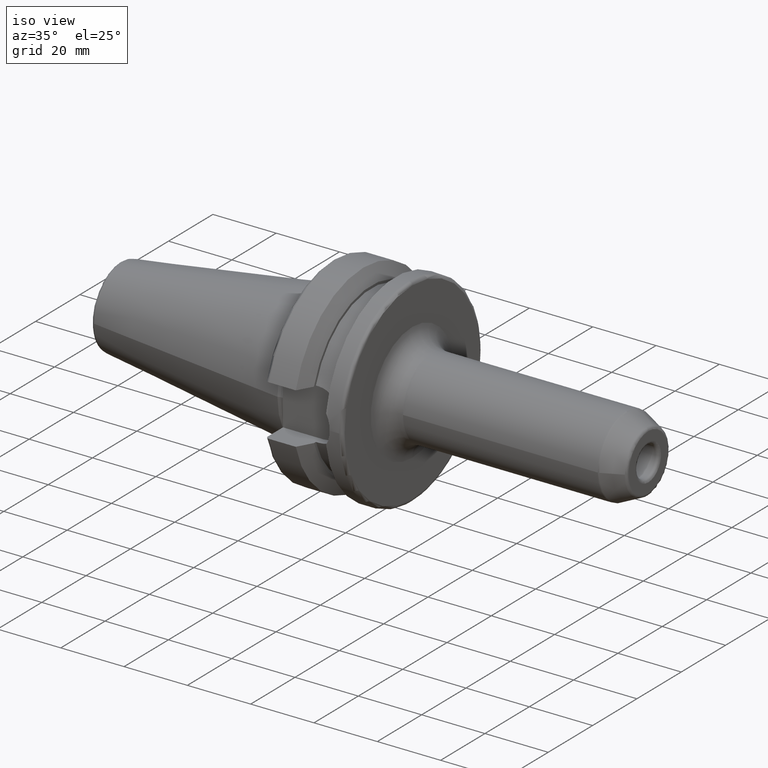
[diagram: clean part render]
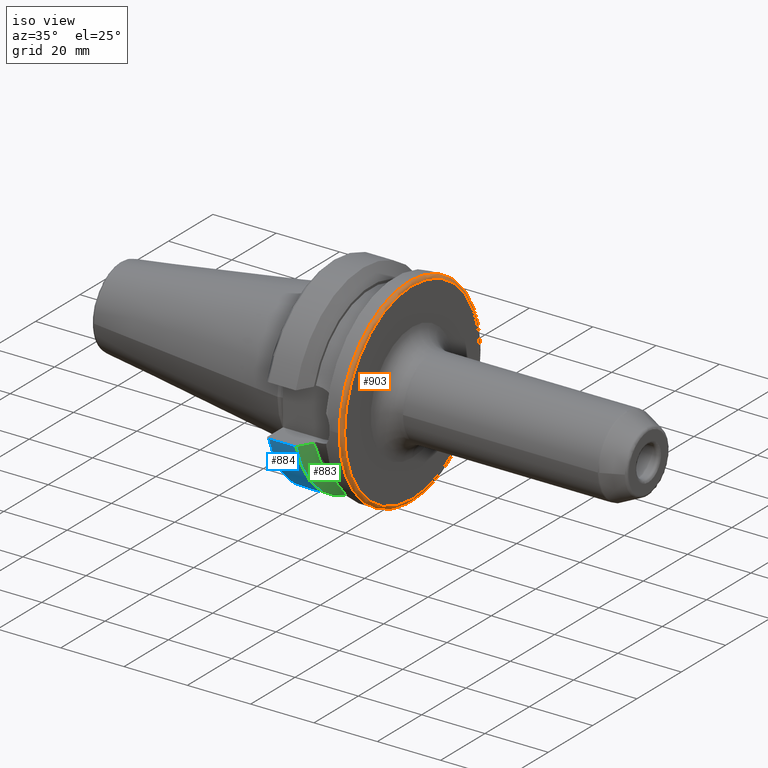
[diagram: same view with three faces highlighted in distinct colors, each labeled with its STEP entity id]
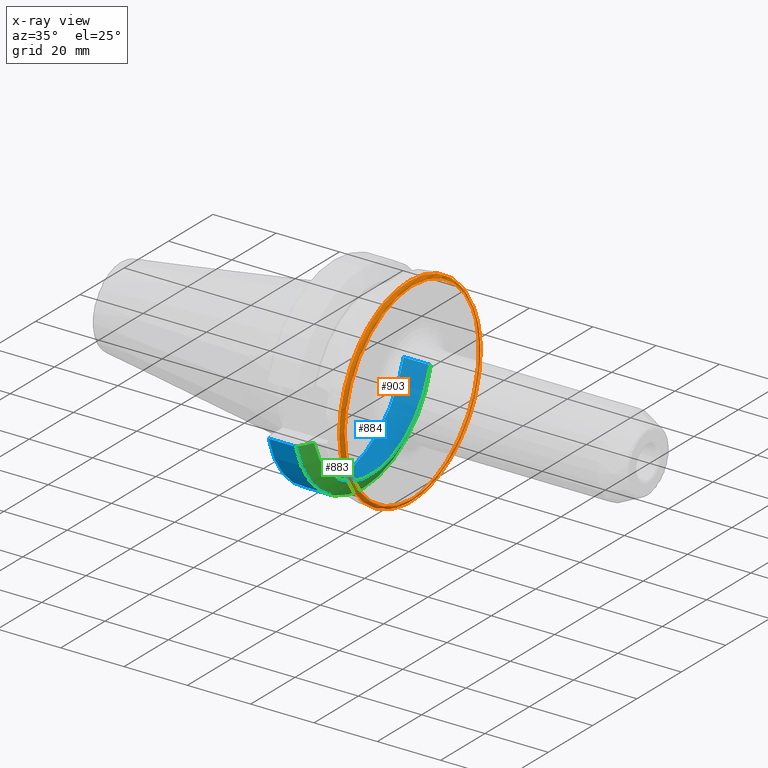
[diagram: x-ray of the same camera — body ghosted, the three highlighted faces saturated]
A machine part, iso view with three faces highlighted in distinct colors.
The next image is the same camera in x-ray (body ghosted, the three faces saturated) — at least one of them is partly hidden behind the body in this view.
Their STEP definitions:

[orange] entity #903 — the highlighted toroidal blend (fillet) surface has major radius 30.5 mm and minor (blend) radius 1 mm.
#225=FACE_OUTER_BOUND('',#282,.T.);
#282=EDGE_LOOP('',(#821,#822,#823,#824,#825));
#310=CIRCLE('',#961,30.5);
#318=CIRCLE('',#981,31.5);
#321=CIRCLE('',#984,31.5);
#347=CIRCLE('',#1035,1.00000000000001);
#377=VERTEX_POINT('',#1478);
#405=VERTEX_POINT('',#1608);
#406=VERTEX_POINT('',#1609);
#472=EDGE_CURVE('',#377,#377,#310,.T.);
#510=EDGE_CURVE('',#405,#406,#318,.T.);
#515=EDGE_CURVE('',#406,#405,#321,.T.);
#567=EDGE_CURVE('',#377,#406,#347,.T.);
#821=ORIENTED_EDGE('',*,*,#472,.F.);
#822=ORIENTED_EDGE('',*,*,#567,.T.);
#823=ORIENTED_EDGE('',*,*,#515,.T.);
#824=ORIENTED_EDGE('',*,*,#510,.T.);
#825=ORIENTED_EDGE('',*,*,#567,.F.);
#856=TOROIDAL_SURFACE('',#1034,30.5,1.00000000000001);
#903=ADVANCED_FACE('',(#225),#856,.T.);
#961=AXIS2_PLACEMENT_3D('',#1479,#1110,#1111);
#981=AXIS2_PLACEMENT_3D('',#1610,#1170,#1171);
#984=AXIS2_PLACEMENT_3D('',#1626,#1177,#1178);
#1034=AXIS2_PLACEMENT_3D('',#1772,#1295,#1296);
#1035=AXIS2_PLACEMENT_3D('',#1773,#1297,#1298);
#1110=DIRECTION('center_axis',(1.,0.,0.));
#1111=DIRECTION('ref_axis',(0.,0.,-1.));
#1170=DIRECTION('center_axis',(1.,0.,0.));
#1171=DIRECTION('ref_axis',(0.,0.,-1.));
#1177=DIRECTION('center_axis',(1.,0.,0.));
#1178=DIRECTION('ref_axis',(0.,0.,-1.));
#1295=DIRECTION('center_axis',(1.,0.,0.));
#1296=DIRECTION('ref_axis',(0.,0.,-1.));
#1297=DIRECTION('center_axis',(0.,-1.,-1.22464679914735E-16));
#1298=DIRECTION('ref_axis',(0.,-1.22464679914735E-16,1.));
#1478=CARTESIAN_POINT('',(27.,-3.73517273739943E-15,30.5));
#1479=CARTESIAN_POINT('Origin',(27.,0.,0.));
#1608=CARTESIAN_POINT('',(26.,-31.5,-3.85763741731416E-15));
#1609=CARTESIAN_POINT('',(26.,-3.85763741731416E-15,31.5));
#1610=CARTESIAN_POINT('Origin',(26.,0.,0.));
#1626=CARTESIAN_POINT('Origin',(26.,0.,0.));
#1772=CARTESIAN_POINT('Origin',(26.,0.,0.));
#1773=CARTESIAN_POINT('Origin',(26.,-3.73517273739943E-15,30.5));

[blue] entity #884 — the highlighted cylindrical surface (partial cylindrical patch) has radius 31.5 mm, axis along (1, 0, 0).
#73=LINE('',#1599,#118);
#80=LINE('',#1664,#125);
#118=VECTOR('',#1163,10.);
#125=VECTOR('',#1206,10.);
#151=CYLINDRICAL_SURFACE('',#995,31.5);
#206=FACE_OUTER_BOUND('',#262,.T.);
#262=EDGE_LOOP('',(#720,#721,#722,#723));
#326=CIRCLE('',#994,31.5000000000001);
#327=CIRCLE('',#996,31.5);
#402=VERTEX_POINT('',#1587);
#403=VERTEX_POINT('',#1598);
#414=VERTEX_POINT('',#1656);
#415=VERTEX_POINT('',#1662);
#506=EDGE_CURVE('',#403,#402,#73,.T.);
#525=EDGE_CURVE('',#403,#414,#326,.T.);
#527=EDGE_CURVE('',#402,#415,#327,.T.);
#528=EDGE_CURVE('',#415,#414,#80,.T.);
#720=ORIENTED_EDGE('',*,*,#506,.T.);
#721=ORIENTED_EDGE('',*,*,#527,.T.);
#722=ORIENTED_EDGE('',*,*,#528,.T.);
#723=ORIENTED_EDGE('',*,*,#525,.F.);
#884=ADVANCED_FACE('',(#206),#151,.T.);
#994=AXIS2_PLACEMENT_3D('',#1657,#1200,#1201);
#995=AXIS2_PLACEMENT_3D('',#1661,#1202,#1203);
#996=AXIS2_PLACEMENT_3D('',#1663,#1204,#1205);
#1163=DIRECTION('',(-1.,0.,0.));
#1200=DIRECTION('center_axis',(1.,0.,0.));
#1201=DIRECTION('ref_axis',(0.,0.,-1.));
#1202=DIRECTION('center_axis',(1.,0.,0.));
#1203=DIRECTION('ref_axis',(0.,1.,0.));
#1204=DIRECTION('center_axis',(1.,0.,0.));
#1205=DIRECTION('ref_axis',(0.,0.,-1.));
#1206=DIRECTION('',(1.,0.,0.));
#1587=CARTESIAN_POINT('',(2.99999999999999,-30.4540227227866,-8.05));
#1598=CARTESIAN_POINT('',(11.5690363073382,-30.4540227227866,-8.05));
#1599=CARTESIAN_POINT('',(7.28451815366907,-30.4540227227866,-8.05));
#1656=CARTESIAN_POINT('',(11.5690363073382,30.4540227227866,-8.05));
#1657=CARTESIAN_POINT('Origin',(11.5690363073382,0.,0.));
#1661=CARTESIAN_POINT('Origin',(7.28451815366907,0.,0.));
#1662=CARTESIAN_POINT('',(2.99999999999999,30.4540227227866,-8.05));
#1663=CARTESIAN_POINT('Origin',(2.99999999999999,0.,0.));
#1664=CARTESIAN_POINT('',(7.28451815366907,30.4540227227866,-8.05));

[green] entity #883 — the highlighted conical surface has half-angle 60.125 deg.
#16=(
BOUNDED_CURVE()
B_SPLINE_CURVE(2,(#1601,#1602,#1603),.UNSPECIFIED.,.F.,.F.)
B_SPLINE_CURVE_WITH_KNOTS((3,3),(0.,0.52358279083281),.UNSPECIFIED.)
CURVE()
GEOMETRIC_REPRESENTATION_ITEM()
RATIONAL_B_SPLINE_CURVE((1.,1.00307360097546,1.))
REPRESENTATION_ITEM('')
);
#17=(
BOUNDED_CURVE()
B_SPLINE_CURVE(2,(#1658,#1659,#1660),.UNSPECIFIED.,.F.,.F.)
B_SPLINE_CURVE_WITH_KNOTS((3,3),(0.,0.52358279083281),.UNSPECIFIED.)
CURVE()
GEOMETRIC_REPRESENTATION_ITEM()
RATIONAL_B_SPLINE_CURVE((1.,1.00307360097546,1.))
REPRESENTATION_ITEM('')
);
#25=CONICAL_SURFACE('',#993,29.2970358274569,1.0493792127616);
#205=FACE_OUTER_BOUND('',#261,.T.);
#261=EDGE_LOOP('',(#716,#717,#718,#719));
#325=CIRCLE('',#992,27.0940716549138);
#326=CIRCLE('',#994,31.5000000000001);
#403=VERTEX_POINT('',#1598);
#404=VERTEX_POINT('',#1600);
#413=VERTEX_POINT('',#1652);
#414=VERTEX_POINT('',#1656);
#507=EDGE_CURVE('',#404,#403,#16,.T.);
#523=EDGE_CURVE('',#404,#413,#325,.T.);
#525=EDGE_CURVE('',#403,#414,#326,.T.);
#526=EDGE_CURVE('',#414,#413,#17,.T.);
#716=ORIENTED_EDGE('',*,*,#507,.T.);
#717=ORIENTED_EDGE('',*,*,#525,.T.);
#718=ORIENTED_EDGE('',*,*,#526,.T.);
#719=ORIENTED_EDGE('',*,*,#523,.F.);
#883=ADVANCED_FACE('',(#205),#25,.T.);
#992=AXIS2_PLACEMENT_3D('',#1653,#1195,#1196);
#993=AXIS2_PLACEMENT_3D('',#1655,#1198,#1199);
#994=AXIS2_PLACEMENT_3D('',#1657,#1200,#1201);
#1195=DIRECTION('center_axis',(1.,0.,0.));
#1196=DIRECTION('ref_axis',(0.,0.,-1.));
#1198=DIRECTION('center_axis',(-1.,0.,0.));
#1199=DIRECTION('ref_axis',(0.,1.,0.));
#1200=DIRECTION('center_axis',(1.,0.,0.));
#1201=DIRECTION('ref_axis',(0.,0.,-1.));
#1598=CARTESIAN_POINT('',(11.5690363073382,-30.4540227227866,-8.05));
#1600=CARTESIAN_POINT('',(14.1,-25.8705666509569,-8.05));
#1601=CARTESIAN_POINT('Ctrl Pts',(14.1,-25.8705666509569,-8.05));
#1602=CARTESIAN_POINT('Ctrl Pts',(12.9374976962938,-27.989970265181,-8.05));
#1603=CARTESIAN_POINT('Ctrl Pts',(11.5690363073382,-30.4540227227866,-8.05));
#1652=CARTESIAN_POINT('',(14.1,25.8705666509569,-8.05));
#1653=CARTESIAN_POINT('Origin',(14.1,0.,0.));
#1655=CARTESIAN_POINT('Origin',(12.8345181536691,0.,0.));
#1656=CARTESIAN_POINT('',(11.5690363073382,30.4540227227866,-8.05));
#1657=CARTESIAN_POINT('Origin',(11.5690363073382,0.,0.));
#1658=CARTESIAN_POINT('Ctrl Pts',(11.5690363073382,30.4540227227866,-8.05));
#1659=CARTESIAN_POINT('Ctrl Pts',(12.9374976962938,27.989970265181,-8.05));
#1660=CARTESIAN_POINT('Ctrl Pts',(14.1,25.8705666509569,-8.05));